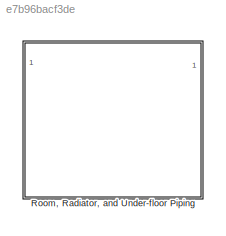
MODEL slx_e7b96bacf3de
KIND library
CONFIG AbsTol = auto
CONFIG EnableMultiTasking = off
CONFIG FixedStep = auto
CONFIG MaxStep = auto
CONFIG MinStep = auto
CONFIG RelTol = 1e-3
CONFIG SampleTimeConstraint = Unconstrained
CONFIG SolverName = VariableStepAuto
CONFIG StartTime = 0.0
CONFIG StopTime = 10.0
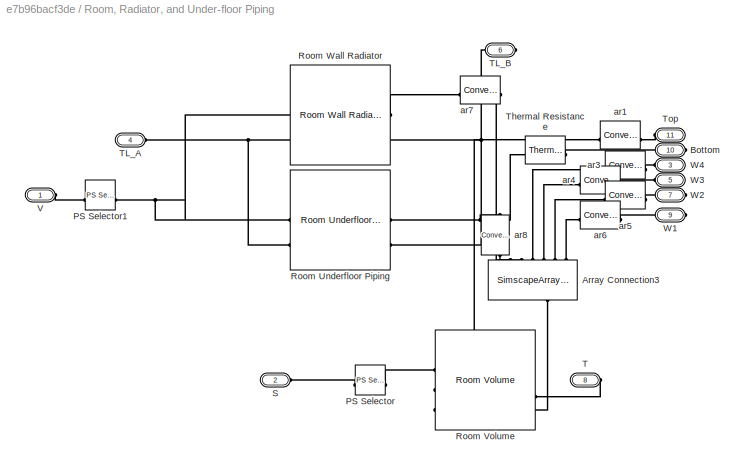
BLOCK [SubSystem] Room, Radiator, and Under-floor Piping
  PortSchema = {"entries":[{"content":{"sides":[{"content":{"connectorIds":["LConn1","LConn2","LConn3","LConn4"]},"type":"ConnectorPlacement.EquallySpacedRectSide","uuid":"8440f6ae-3089-4f14-af97-f7a7d9c670fb"},{"content":{"connectorIds":["RConn1","RConn2","RConn3"],"side":"RIGHT"},"type":"ConnectorPlacement.EquallySpacedRectSide","uuid":"df84a625-bd6d-46a4-b71c-d411d28f8df6"},{"content":{"connectorIds":["LConn5...<+468ch>
BLOCK [SimscapeArrayConnection] Room, Radiator, and Under-floor Piping/Array Connection3
  Domain = foundation.thermal.thermal
  NameLocation = left
  NumScalarElements = 6
BLOCK [PMIOPort] Room, Radiator, and Under-floor Piping/Bottom
  NameLocation = right
  Port = 10
  Side = Right
BLOCK [Reference] Room, Radiator, and Under-floor Piping/PS Selector  REF=fl_lib/Physical Signals/Nonlinear Operators/PS Selector
  SourceBlock = fl_lib/Physical Signals/Nonlinear Operators/PS Selector
  SourceType = PS Selector
BLOCK [Reference] Room, Radiator, and Under-floor Piping/PS Selector1  REF=fl_lib/Physical Signals/Nonlinear Operators/PS Selector
  SourceBlock = fl_lib/Physical Signals/Nonlinear Operators/PS Selector
  SourceType = PS Selector
BLOCK [Reference] Room, Radiator, and Under-floor Piping/Room Underfloor Piping  REF=RoomUnderFloorPiping_lib/Room Underfloor
Piping
  SourceBlock = RoomUnderFloorPiping_lib/Room Underfloor\nPiping
  SourceType = Room Underfloor\nPiping
BLOCK [Reference] Room, Radiator, and Under-floor Piping/Room Volume  REF=RoomVolume_lib/Room Volume
  SourceBlock = RoomVolume_lib/Room Volume
  SourceType = Room Volume
BLOCK [Reference] Room, Radiator, and Under-floor Piping/Room Wall Radiator  REF=RoomRadiator_lib/Room Wall Radiator
  SourceBlock = RoomRadiator_lib/Room Wall Radiator
  SourceType = Room Wall Radiator
BLOCK [PMIOPort] Room, Radiator, and Under-floor Piping/S
  NameLocation = left
  Port = 2
  Side = Left
BLOCK [PMIOPort] Room, Radiator, and Under-floor Piping/T
  NameLocation = right
  Port = 8
  Side = Right
BLOCK [PMIOPort] Room, Radiator, and Under-floor Piping/TL_A
  NameLocation = left
  Port = 4
  Side = Left
BLOCK [PMIOPort] Room, Radiator, and Under-floor Piping/TL_B
  NameLocation = right
  Port = 6
  Side = Right
BLOCK [Reference] Room, Radiator, and Under-floor Piping/Thermal Resistance  REF=fl_lib/Thermal/Thermal Elements/Thermal Resistance
  SourceBlock = fl_lib/Thermal/Thermal Elements/Thermal Resistance
  SourceType = Thermal Resistance
BLOCK [PMIOPort] Room, Radiator, and Under-floor Piping/Top
  NameLocation = right
  Port = 11
  Side = Left
BLOCK [PMIOPort] Room, Radiator, and Under-floor Piping/V
  NameLocation = left
  Side = Left
BLOCK [PMIOPort] Room, Radiator, and Under-floor Piping/W1
  NameLocation = right
  Port = 9
  Side = Right
BLOCK [PMIOPort] Room, Radiator, and Under-floor Piping/W2
  NameLocation = right
  Port = 7
  Side = Right
BLOCK [PMIOPort] Room, Radiator, and Under-floor Piping/W3
  NameLocation = right
  Port = 5
  Side = Left
BLOCK [PMIOPort] Room, Radiator, and Under-floor Piping/W4
  NameLocation = right
  Port = 3
  Side = Left
BLOCK [Reference] Room, Radiator, and Under-floor Piping/ar1  REF=fl_lib/Thermal/Thermal Elements/Convective Heat
Transfer
  NameLocation = top
  SourceBlock = fl_lib/Thermal/Thermal Elements/Convective Heat\nTransfer
  SourceType = Convective Heat\nTransfer
BLOCK [Reference] Room, Radiator, and Under-floor Piping/ar3  REF=fl_lib/Thermal/Thermal Elements/Convective Heat
Transfer
  NameLocation = top
  SourceBlock = fl_lib/Thermal/Thermal Elements/Convective Heat\nTransfer
  SourceType = Convective Heat\nTransfer
BLOCK [Reference] Room, Radiator, and Under-floor Piping/ar4  REF=fl_lib/Thermal/Thermal Elements/Convective Heat
Transfer
  NameLocation = top
  SourceBlock = fl_lib/Thermal/Thermal Elements/Convective Heat\nTransfer
  SourceType = Convective Heat\nTransfer
BLOCK [Reference] Room, Radiator, and Under-floor Piping/ar5  REF=fl_lib/Thermal/Thermal Elements/Convective Heat
Transfer
  NameLocation = top
  SourceBlock = fl_lib/Thermal/Thermal Elements/Convective Heat\nTransfer
  SourceType = Convective Heat\nTransfer
BLOCK [Reference] Room, Radiator, and Under-floor Piping/ar6  REF=fl_lib/Thermal/Thermal Elements/Convective Heat
Transfer
  NameLocation = top
  SourceBlock = fl_lib/Thermal/Thermal Elements/Convective Heat\nTransfer
  SourceType = Convective Heat\nTransfer
BLOCK [Reference] Room, Radiator, and Under-floor Piping/ar7  REF=fl_lib/Thermal/Thermal Elements/Convective Heat
Transfer
  NameLocation = top
  SourceBlock = fl_lib/Thermal/Thermal Elements/Convective Heat\nTransfer
  SourceType = Convective Heat\nTransfer
BLOCK [Reference] Room, Radiator, and Under-floor Piping/ar8  REF=fl_lib/Thermal/Thermal Elements/Convective Heat
Transfer
  NameLocation = right
  SourceBlock = fl_lib/Thermal/Thermal Elements/Convective Heat\nTransfer
  SourceType = Convective Heat\nTransfer
PLINE Room, Radiator, and Under-floor Piping/Array Connection3:LConn1 -- Room, Radiator, and Under-floor Piping/ar8:RConn1
PLINE Room, Radiator, and Under-floor Piping/Array Connection3:LConn2 -- Room, Radiator, and Under-floor Piping/ar7:RConn1
PLINE Room, Radiator, and Under-floor Piping/Array Connection3:LConn3 -- Room, Radiator, and Under-floor Piping/ar3:LConn1
PLINE Room, Radiator, and Under-floor Piping/Array Connection3:LConn4 -- Room, Radiator, and Under-floor Piping/ar4:LConn1
PLINE Room, Radiator, and Under-floor Piping/Array Connection3:LConn5 -- Room, Radiator, and Under-floor Piping/ar5:LConn1
PLINE Room, Radiator, and Under-floor Piping/Array Connection3:LConn6 -- Room, Radiator, and Under-floor Piping/ar6:LConn1
PLINE Room, Radiator, and Under-floor Piping/Array Connection3:RConn1 -- Room, Radiator, and Under-floor Piping/Room Volume:LConn3
PLINE Room, Radiator, and Under-floor Piping/Bottom:RConn1 -- Room, Radiator, and Under-floor Piping/Thermal Resistance:RConn1
PLINE Room, Radiator, and Under-floor Piping/PS Selector1:LConn1 -- Room, Radiator, and Under-floor Piping/V:RConn1
PNET net1: Room, Radiator, and Under-floor Piping/PS Selector1:RConn1 -- Room, Radiator, and Under-floor Piping/Room Underfloor Piping:LConn1 -- Room, Radiator, and Under-floor Piping/Room Wall Radiator:LConn1
PLINE Room, Radiator, and Under-floor Piping/PS Selector:LConn1 -- Room, Radiator, and Under-floor Piping/S:RConn1
PLINE Room, Radiator, and Under-floor Piping/PS Selector:RConn1 -- Room, Radiator, and Under-floor Piping/Room Volume:LConn1
PNET net2: Room, Radiator, and Under-floor Piping/Room Underfloor Piping:LConn2 -- Room, Radiator, and Under-floor Piping/Room Wall Radiator:LConn2 -- Room, Radiator, and Under-floor Piping/TL_A:RConn1
PNET net3: Room, Radiator, and Under-floor Piping/Room Underfloor Piping:RConn1 -- Room, Radiator, and Under-floor Piping/Thermal Resistance:LConn1 -- Room, Radiator, and Under-floor Piping/ar8:LConn1
PNET net4: Room, Radiator, and Under-floor Piping/Room Underfloor Piping:RConn2 -- Room, Radiator, and Under-floor Piping/Room Wall Radiator:RConn2 -- Room, Radiator, and Under-floor Piping/TL_B:RConn1
PLINE Room, Radiator, and Under-floor Piping/Room Volume:LConn2 -- Room, Radiator, and Under-floor Piping/ar1:LConn1
PLINE Room, Radiator, and Under-floor Piping/Room Volume:RConn1 -- Room, Radiator, and Under-floor Piping/T:RConn1
PLINE Room, Radiator, and Under-floor Piping/Room Wall Radiator:RConn1 -- Room, Radiator, and Under-floor Piping/ar7:LConn1
PLINE Room, Radiator, and Under-floor Piping/Top:RConn1 -- Room, Radiator, and Under-floor Piping/ar1:RConn1
PLINE Room, Radiator, and Under-floor Piping/W1:RConn1 -- Room, Radiator, and Under-floor Piping/ar6:RConn1
PLINE Room, Radiator, and Under-floor Piping/W2:RConn1 -- Room, Radiator, and Under-floor Piping/ar5:RConn1
PLINE Room, Radiator, and Under-floor Piping/W3:RConn1 -- Room, Radiator, and Under-floor Piping/ar4:RConn1
PLINE Room, Radiator, and Under-floor Piping/W4:RConn1 -- Room, Radiator, and Under-floor Piping/ar3:RConn1
note: PNET lines group multi-terminal physical nets as a canonical sorted terminal list (undirected conserving connections); 2-terminal nets keep the pairwise PLINE form
